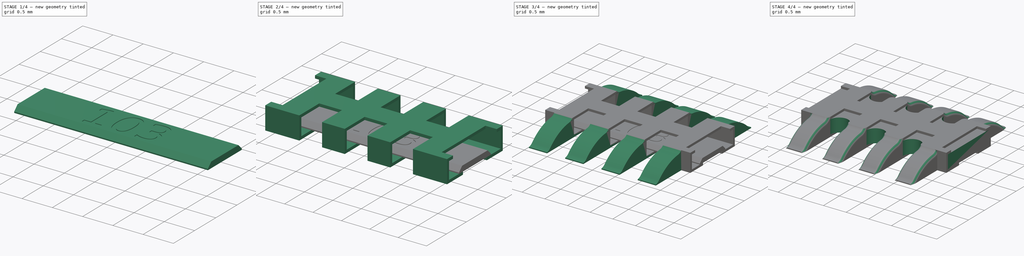
[diagram: build sequence overview — one tinted view per stage of 4, left to right]
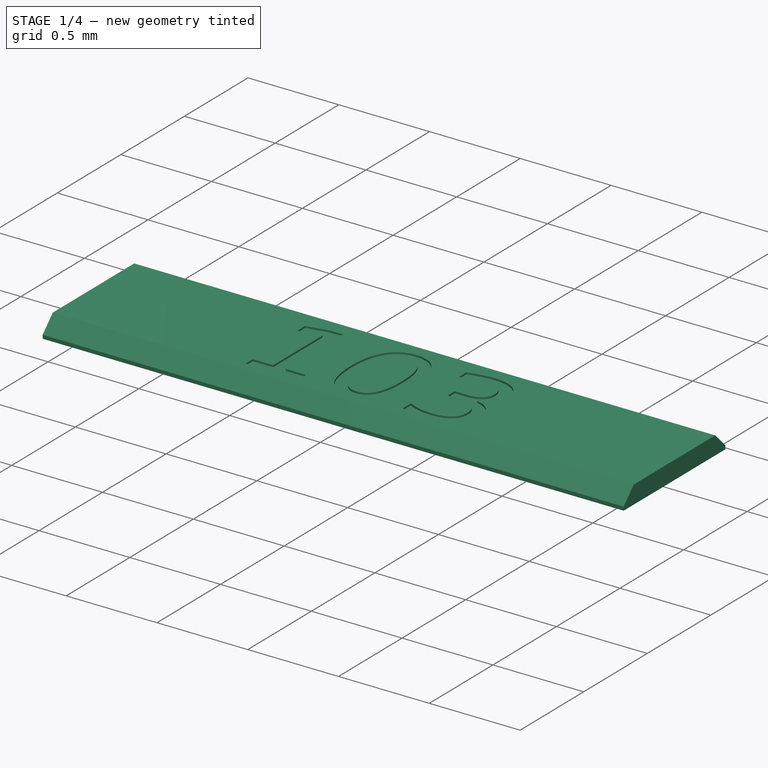
[diagram: stage 1 of 4 — iso view after this stage's code; geometry added in this stage tinted green]
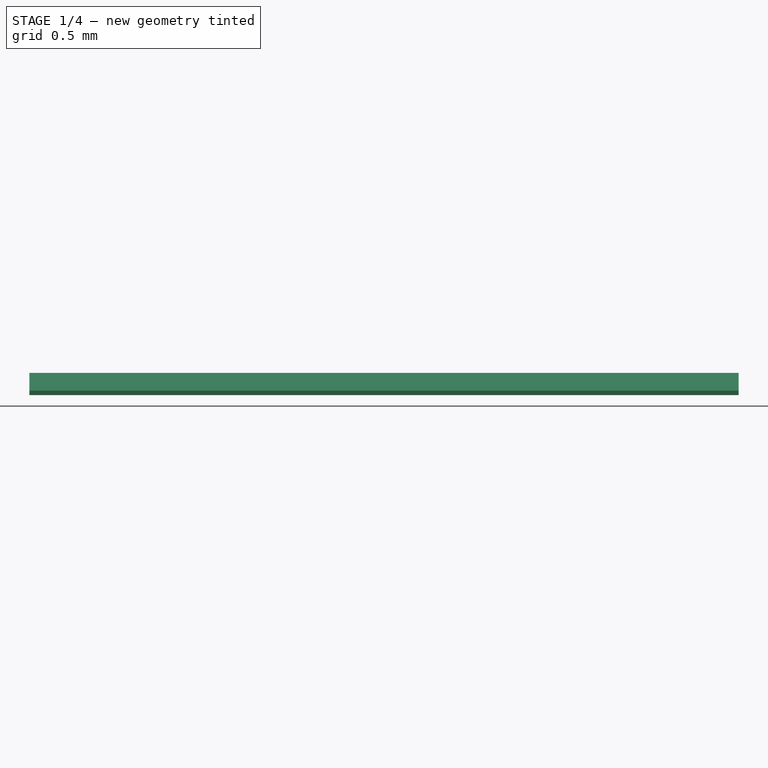
[diagram: stage 1 of 4 — front view after this stage's code; geometry added in this stage tinted green]
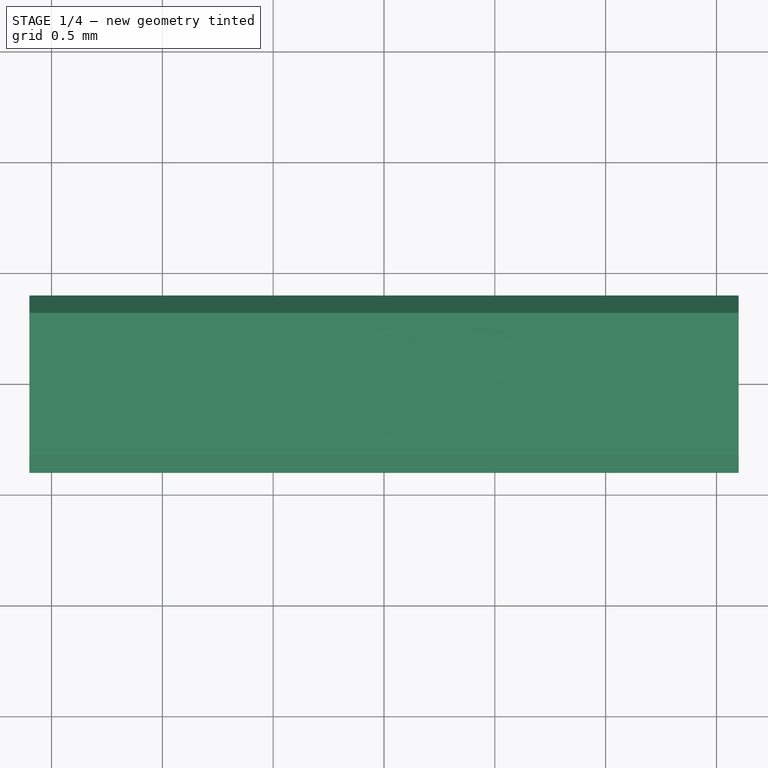
[diagram: stage 1 of 4 — top view after this stage's code; geometry added in this stage tinted green]
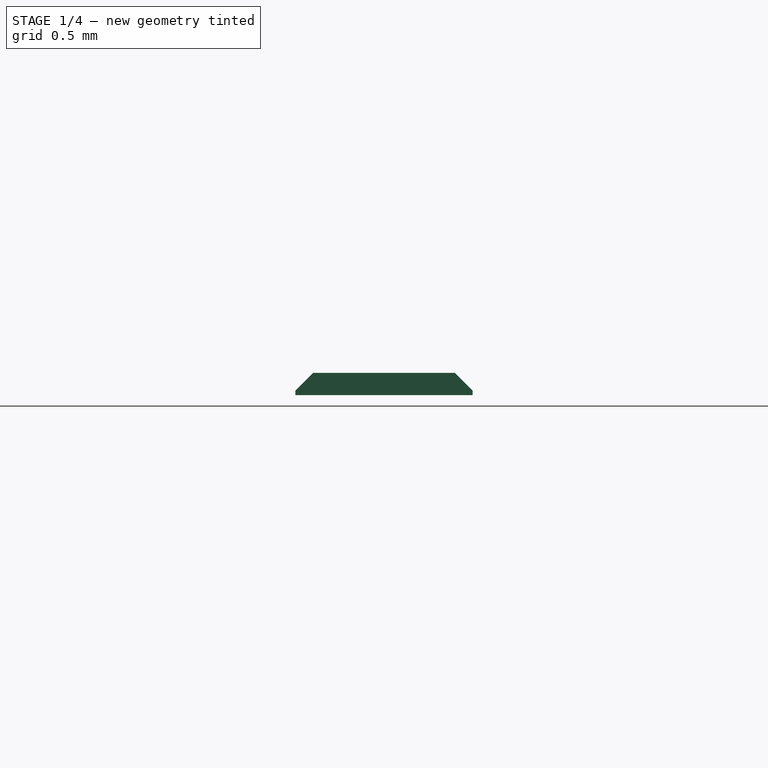
[diagram: stage 1 of 4 — right view after this stage's code; geometry added in this stage tinted green]
FCSTD DOCUMENT  (FreeCAD 0.18R4 (GitTag))
Label: Array chip resistor 103
Comment: https://designlibre.org/license-en/
License: Other
LicenseURL: https://designlibre.org/license-en/
objects: Sketcher::SketchObject×8, PartDesign::Pad×4, PartDesign::Pocket×4, PartDesign::Body×3, PartDesign::Plane×1, PartDesign::Mirrored×1, PartDesign::LinearPattern×1, PartDesign::MultiTransform×1, PartDesign::Fillet×1, PartDesign::Chamfer×1, App::Part×1
note: 33 computed .brp shape members not serialized (recipe doc carries the construction recipe); baked Part::Feature solids carry a one-line shape summary decoded from their .brp

FEATURE [PartDesign::Body] Body001
  Group = -> [Sketch002,Pad001,Sketch003,Pocket001,Sketch004,Pocket002,DatumPlane,Sketch005,Pad002,MultiTransform,Mirrored,LinearPattern,Fillet]
  Origin = -> Origin002
  Tip = -> Fillet
FEATURE [Sketcher::SketchObject] Sketch006
  MapMode = 5
  Support = -> [XY_Plane003]
  sketch-geometry (4):
    g0: LineSegment StartX=-1.6 StartY=0.4 StartZ=0 EndX=1.6 EndY=0.4 EndZ=0
    g1: LineSegment StartX=1.6 StartY=0.4 StartZ=0 EndX=1.6 EndY=-0.4 EndZ=0
    g2: LineSegment StartX=1.6 StartY=-0.4 StartZ=0 EndX=-1.6 EndY=-0.4 EndZ=0
    g3: LineSegment StartX=-1.6 StartY=-0.4 StartZ=0 EndX=-1.6 EndY=0.4 EndZ=0
  constraints (11):
    c: Coincident(g0,g1)
    c: Coincident(g1,g2)
    c: Coincident(g2,g3)
    c: Coincident(g3,g0)
    c: Horizontal(g0)
    c: Horizontal(g2)
    c: Vertical(g1)
    c: Vertical(g3)
    c: DistanceX(g0,g0) = 3.2
    c: DistanceY(g3,g3) = 0.8
    c: Symmetric(g2,g0,g-1)
FEATURE [PartDesign::Pad] Pad003
  Length = 0.1
  Length2 = 100
  Profile = -> Sketch006
  Refine = true
  Type = 0
FEATURE [PartDesign::Chamfer] Chamfer
  Base = -> Pad003 [Edge4,Edge10]
  BaseFeature = -> Pad003
  Size = 0.08
FEATURE [Sketcher::SketchObject] Sketch008
  Placement = pos=(0,0,0.25) rot=(0,0,1;0rad)
  sketch-geometry (56):
    g0: BSplineCurve PolesCount=2 KnotsCount=2 Degree=1 IsPeriodic=0
    g1: BSplineCurve PolesCount=2 KnotsCount=2 Degree=1 IsPeriodic=0
    g2: BSplineCurve PolesCount=2 KnotsCount=2 Degree=1 IsPeriodic=0
    g3: BSplineCurve PolesCount=2 KnotsCount=2 Degree=1 IsPeriodic=0
    g4: BSplineCurve PolesCount=2 KnotsCount=2 Degree=1 IsPeriodic=0
    g5: BSplineCurve PolesCount=2 KnotsCount=2 Degree=1 IsPeriodic=0
    g6: BSplineCurve PolesCount=2 KnotsCount=2 Degree=1 IsPeriodic=0
    g7: BSplineCurve PolesCount=2 KnotsCount=2 Degree=1 IsPeriodic=0
    g8: BSplineCurve PolesCount=2 KnotsCount=2 Degree=1 IsPeriodic=0
    g9: BSplineCurve PolesCount=2 KnotsCount=2 Degree=1 IsPeriodic=0
    g10: BSplineCurve PolesCount=2 KnotsCount=2 Degree=1 IsPeriodic=0
    g11: BSplineCurve PolesCount=3 KnotsCount=2 Degree=2 IsPeriodic=0
    g12: BSplineCurve PolesCount=3 KnotsCount=2 Degree=2 IsPeriodic=0
    g13: BSplineCurve PolesCount=3 KnotsCount=2 Degree=2 IsPeriodic=0
    g14: BSplineCurve PolesCount=3 KnotsCount=2 Degree=2 IsPeriodic=0
    g15: BSplineCurve PolesCount=3 KnotsCount=2 Degree=2 IsPeriodic=0
    g16: BSplineCurve PolesCount=3 KnotsCount=2 Degree=2 IsPeriodic=0
    g17: BSplineCurve PolesCount=3 KnotsCount=2 Degree=2 IsPeriodic=0
    g18: BSplineCurve PolesCount=3 KnotsCount=2 Degree=2 IsPeriodic=0
    g19: BSplineCurve PolesCount=3 KnotsCount=2 Degree=2 IsPeriodic=0
    g20: BSplineCurve PolesCount=3 KnotsCount=2 Degree=2 IsPeriodic=0
    g21: BSplineCurve PolesCount=3 KnotsCount=2 Degree=2 IsPeriodic=0
    g22: BSplineCurve PolesCount=3 KnotsCount=2 Degree=2 IsPeriodic=0
    g23: BSplineCurve PolesCount=3 KnotsCount=2 Degree=2 IsPeriodic=0
    g24: BSplineCurve PolesCount=3 KnotsCount=2 Degree=2 IsPeriodic=0
    g25: BSplineCurve PolesCount=3 KnotsCount=2 Degree=2 IsPeriodic=0
    g26: BSplineCurve PolesCount=3 KnotsCount=2 Degree=2 IsPeriodic=0
    g27: BSplineCurve PolesCount=3 KnotsCount=2 Degree=2 IsPeriodic=0
    g28: BSplineCurve PolesCount=3 KnotsCount=2 Degree=2 IsPeriodic=0
    g29: BSplineCurve PolesCount=3 KnotsCount=2 Degree=2 IsPeriodic=0
    g30: BSplineCurve PolesCount=3 KnotsCount=2 Degree=2 IsPeriodic=0
    g31: BSplineCurve PolesCount=3 KnotsCount=2 Degree=2 IsPeriodic=0
    g32: BSplineCurve PolesCount=3 KnotsCount=2 Degree=2 IsPeriodic=0
    g33: BSplineCurve PolesCount=2 KnotsCount=2 Degree=1 IsPeriodic=0
    g34: BSplineCurve PolesCount=3 KnotsCount=2 Degree=2 IsPeriodic=0
    g35: BSplineCurve PolesCount=3 KnotsCount=2 Degree=2 IsPeriodic=0
    g36: BSplineCurve PolesCount=3 KnotsCount=2 Degree=2 IsPeriodic=0
    g37: BSplineCurve PolesCount=3 KnotsCount=2 Degree=2 IsPeriodic=0
    g38: BSplineCurve PolesCount=3 KnotsCount=2 Degree=2 IsPeriodic=0
    g39: BSplineCurve PolesCount=3 KnotsCount=2 Degree=2 IsPeriodic=0
    g40: BSplineCurve PolesCount=2 KnotsCount=2 Degree=1 IsPeriodic=0
    g41: BSplineCurve PolesCount=2 KnotsCount=2 Degree=1 IsPeriodic=0
    g42: BSplineCurve PolesCount=2 KnotsCount=2 Degree=1 IsPeriodic=0
    g43: BSplineCurve PolesCount=3 KnotsCount=2 Degree=2 IsPeriodic=0
    g44: BSplineCurve PolesCount=3 KnotsCount=2 Degree=2 IsPeriodic=0
    g45: BSplineCurve PolesCount=3 KnotsCount=2 Degree=2 IsPeriodic=0
    g46: BSplineCurve PolesCount=3 KnotsCount=2 Degree=2 IsPeriodic=0
    g47: BSplineCurve PolesCount=3 KnotsCount=2 Degree=2 IsPeriodic=0
    g48: BSplineCurve PolesCount=3 KnotsCount=2 Degree=2 IsPeriodic=0
    g49: BSplineCurve PolesCount=2 KnotsCount=2 Degree=1 IsPeriodic=0
    g50: BSplineCurve PolesCount=3 KnotsCount=2 Degree=2 IsPeriodic=0
    g51: BSplineCurve PolesCount=3 KnotsCount=2 Degree=2 IsPeriodic=0
    g52: BSplineCurve PolesCount=3 KnotsCount=2 Degree=2 IsPeriodic=0
    g53: BSplineCurve PolesCount=3 KnotsCount=2 Degree=2 IsPeriodic=0
    g54: BSplineCurve PolesCount=3 KnotsCount=2 Degree=2 IsPeriodic=0
    g55: BSplineCurve PolesCount=3 KnotsCount=2 Degree=2 IsPeriodic=0
  constraints (56):
    c: Coincident(g0,g1)
    c: Coincident(g1,g2)
    c: Coincident(g2,g3)
    c: Coincident(g3,g4)
    c: Coincident(g4,g5)
    c: Coincident(g5,g6)
    c: Coincident(g6,g7)
    c: Coincident(g7,g8)
    c: Coincident(g8,g9)
    c: Coincident(g9,g10)
    c: Coincident(g10,g0)
    c: Coincident(g11,g12)
    c: Coincident(g12,g13)
    c: Coincident(g13,g14)
    c: Coincident(g14,g15)
    c: Coincident(g15,g16)
    c: Coincident(g16,g17)
    c: Coincident(g17,g18)
    c: Coincident(g18,g11)
    c: Coincident(g19,g20)
    c: Coincident(g20,g21)
    c: Coincident(g21,g22)
    c: Coincident(g22,g23)
    c: Coincident(g23,g24)
    c: Coincident(g24,g25)
    c: Coincident(g25,g26)
    c: Coincident(g26,g19)
    c: Coincident(g27,g28)
    c: Coincident(g28,g29)
    c: Coincident(g29,g30)
    c: Coincident(g30,g31)
    c: Coincident(g31,g32)
    c: Coincident(g32,g33)
    c: Coincident(g33,g34)
    c: Coincident(g34,g35)
    c: Coincident(g35,g36)
    c: Coincident(g36,g37)
    c: Coincident(g37,g38)
    c: Coincident(g38,g39)
    c: Coincident(g39,g40)
    c: Coincident(g40,g41)
    c: Coincident(g41,g42)
    c: Coincident(g42,g43)
    c: Coincident(g43,g44)
    c: Coincident(g44,g45)
    c: Coincident(g45,g46)
    c: Coincident(g46,g47)
    c: Coincident(g47,g48)
    c: Coincident(g48,g49)
    c: Coincident(g49,g50)
    c: Coincident(g50,g51)
    c: Coincident(g51,g52)
    c: Coincident(g52,g53)
    c: Coincident(g53,g54)
    c: Coincident(g54,g55)
    c: Coincident(g55,g27)
FEATURE [PartDesign::Pocket] Pocket003
  BaseFeature = -> Chamfer
  Length = 0.16
  Length2 = 100
  Profile = -> Sketch008
  Refine = true
  Type = 0
FEATURE [PartDesign::Body] Body002
  Group = -> [Sketch006,Pad003,Chamfer,Sketch008,Pocket003]
  Origin = -> Origin003
  Placement = pos=(0,0,0.3) rot=(0,0,1;0rad)
  Tip = -> Pocket003
FEATURE [App::Part] Part  label="Resistor array103"
  Group = -> [Body,Body001,Body002]
  Origin = -> Origin
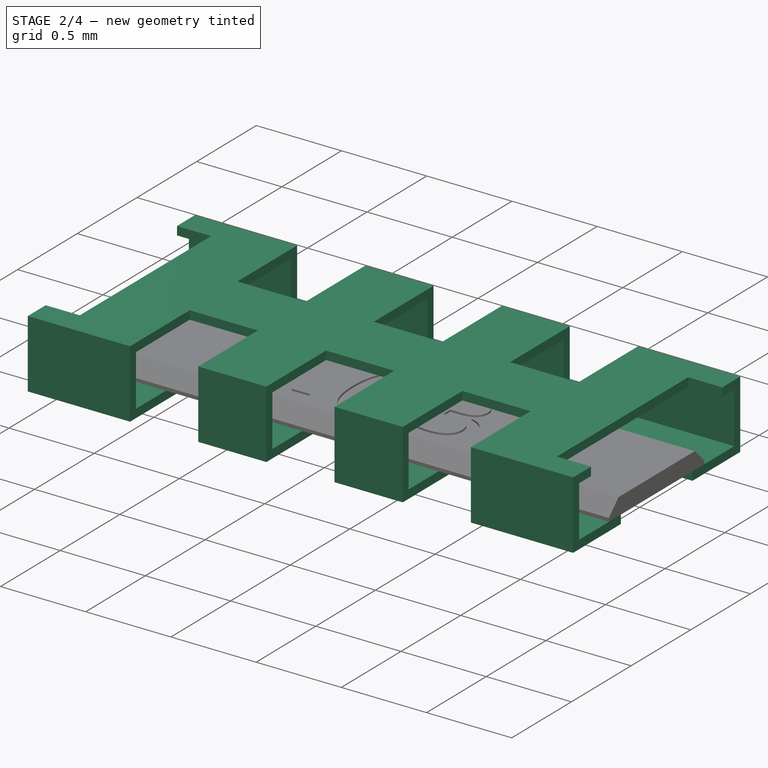
[diagram: stage 2 of 4 — iso view after this stage's code; geometry added in this stage tinted green]
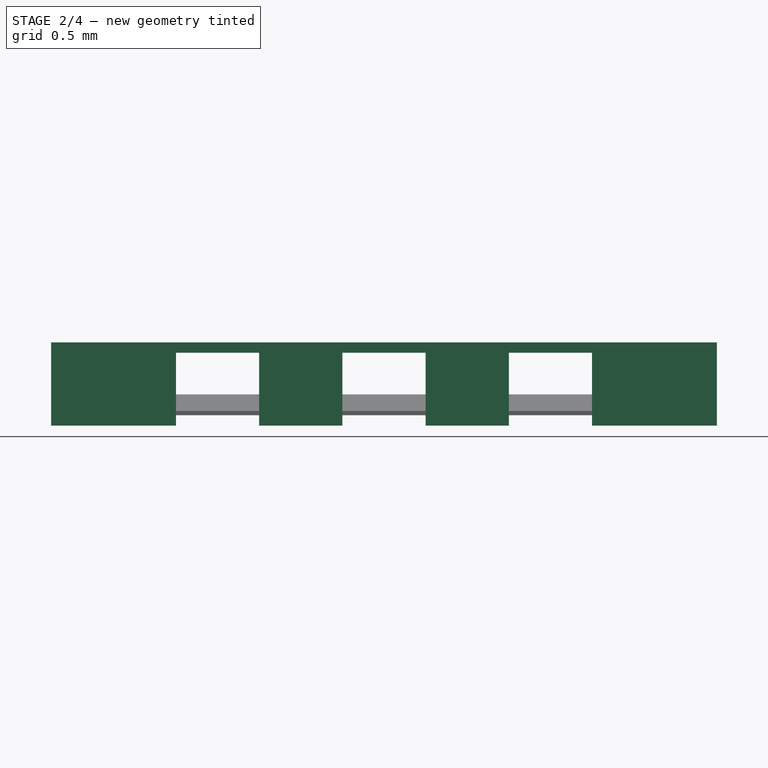
[diagram: stage 2 of 4 — front view after this stage's code; geometry added in this stage tinted green]
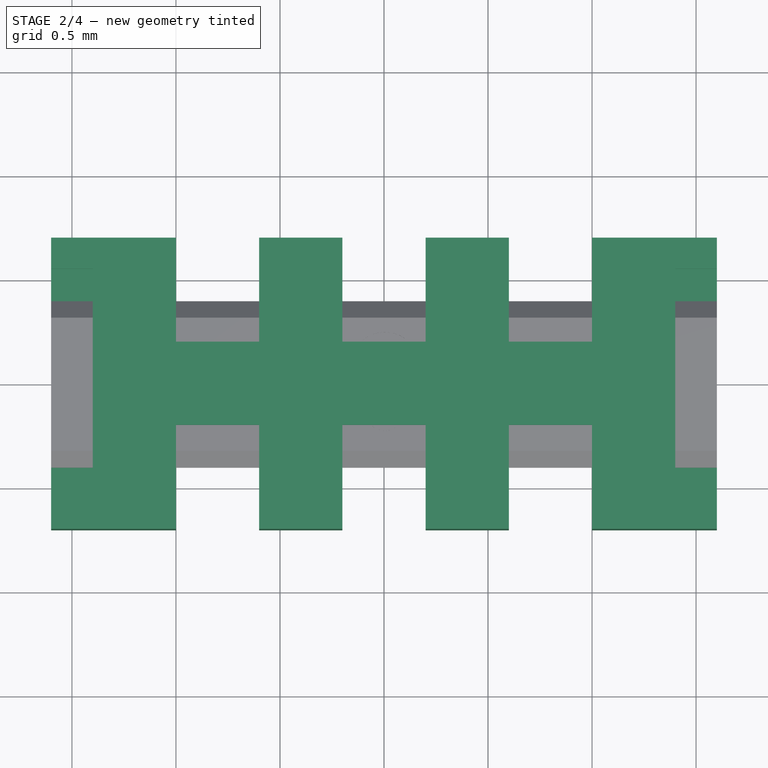
[diagram: stage 2 of 4 — top view after this stage's code; geometry added in this stage tinted green]
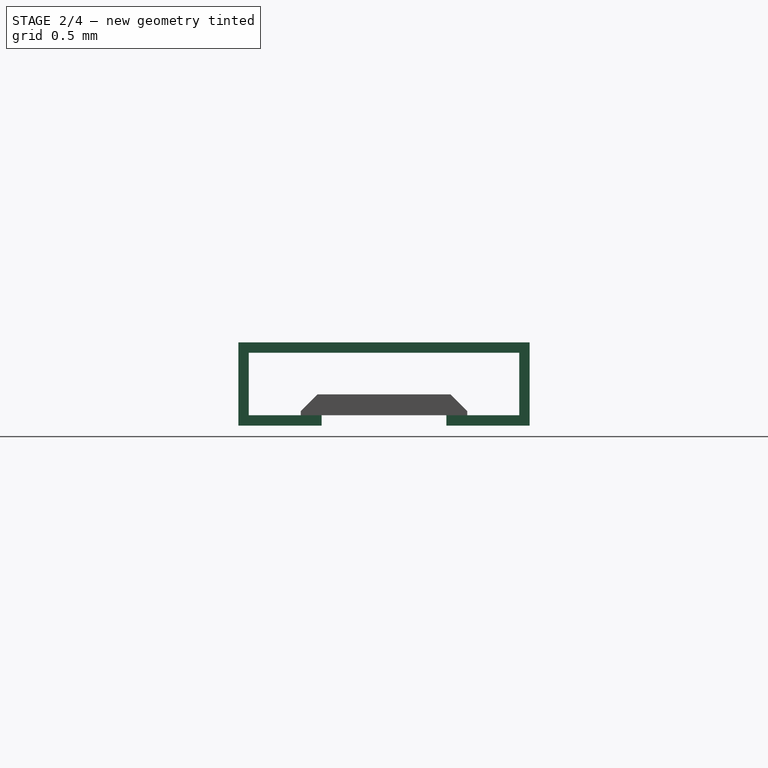
[diagram: stage 2 of 4 — right view after this stage's code; geometry added in this stage tinted green]
FEATURE [PartDesign::Body] Body
  Group = -> [Sketch,Pad,Sketch001,Pocket]
  Origin = -> Origin001
  Tip = -> Pocket
FEATURE [Sketcher::SketchObject] Sketch002
  MapMode = 5
  Placement = pos=(0,0,0) rot=(0.57735,0.57735,0.57735;2.0944rad)
  Support = -> [YZ_Plane002]
  sketch-geometry (14):
    g0: LineSegment StartX=-0.7 StartY=0.35 StartZ=0 EndX=0.7 EndY=0.35 EndZ=0
    g1: LineSegment StartX=0.7 StartY=0.35 StartZ=0 EndX=0.7 EndY=-0.05 EndZ=0
    g2: LineSegment StartX=0.7 StartY=-0.05 StartZ=0 EndX=0.3 EndY=-0.05 EndZ=0
    g3: LineSegment StartX=-0.7 StartY=-0.05 StartZ=0 EndX=-0.7 EndY=0.35 EndZ=0
    g4: LineSegment StartX=-0.65 StartY=0.3 StartZ=0 EndX=0.65 EndY=0.3 EndZ=0
    g5: LineSegment StartX=0.65 StartY=0.3 StartZ=0 EndX=0.65 EndY=0 EndZ=0
    g6: LineSegment StartX=0.65 StartY=0 StartZ=0 EndX=0.3 EndY=0 EndZ=0
    g7: LineSegment StartX=-0.65 StartY=0 StartZ=0 EndX=-0.65 EndY=0.3 EndZ=0
    g8: LineSegment StartX=-0.3 StartY=0 StartZ=0 EndX=-0.3 EndY=-0.05 EndZ=0
    g9: LineSegment StartX=0.3 StartY=0 StartZ=0 EndX=0.3 EndY=-0.05 EndZ=0
    g10: LineSegment StartX=-0.3 StartY=0 StartZ=0 EndX=-0.65 EndY=0 EndZ=0
    g11: LineSegment StartX=-0.3 StartY=-0.05 StartZ=0 EndX=-0.7 EndY=-0.05 EndZ=0
    g12: LineSegment [constr] StartX=-0.65 StartY=0 StartZ=0 EndX=-0.7 EndY=0 EndZ=0
    g13: LineSegment [constr] StartX=0 StartY=0.3 StartZ=0 EndX=0 EndY=0.35 EndZ=0
  constraints (38):
    c: Vertical(g1)
    c: Vertical(g3)
    c: Vertical(g5)
    c: Vertical(g9)
    c: Coincident(g6,g9)
    c: Coincident(g10,g8)
    c: Tangent(g6,g10)
    c: Coincident(g2,g9)
    c: Coincident(g11,g8)
    c: Tangent(g2,g11)
    c: Symmetric(g6,g8,g-2)
    c: Symmetric(g2,g8,g-2)
    c: PointOnObject(g12,g7)
    c: Horizontal(g12)
    c: PointOnObject(g13,g4)
    c: PointOnObject(g13,g0)
    c: Vertical(g13)
    c: PointOnObject(g13,g-2)
    c: Equal(g13,g8)
    c: Equal(g12,g8)
    c: DistanceX(g3,g8) = 0.4
    c: PointOnObject(g12,g-1)
    c: PointOnObject(g12,g3)
    c: DistanceX(g3,g1) = 1.4
    c: DistanceY(g11,g0) = 0.4
    c: Equal(g6,g10)
    c: DistanceY(g8,g8) = 0.05
    c: Symmetric(g4,g4,g-2)
    c: Symmetric(g0,g0,g-2)
    c: PointOnObject(g8,g-1)
    c: Coincident(g3,g0)
    c: Coincident(g4,g7)
    c: Coincident(g10,g7)
    c: Coincident(g3,g11)
    c: Coincident(g6,g5)
    c: Coincident(g1,g2)
    c: Coincident(g0,g1)
    c: Coincident(g5,g4)
FEATURE [PartDesign::Pad] Pad001
  Length = 3.2
  Length2 = 100
  Midplane = true
  Placement = pos=(0,0,0) rot=(0.57735,0.57735,0.57735;2.0944rad)
  Profile = -> Sketch002
  Refine = true
  Type = 0
FEATURE [Sketcher::SketchObject] Sketch003
  ExternalGeometry = -> [Pad001]
  MapMode = 5
  Support = -> [XY_Plane002]
  sketch-geometry (24):
    g0: LineSegment StartX=-1 StartY=-0.2 StartZ=0 EndX=-0.6 EndY=-0.2 EndZ=0
    g1: LineSegment StartX=-0.6 StartY=-0.2 StartZ=0 EndX=-0.6 EndY=-0.7 EndZ=0
    g2: LineSegment StartX=-0.6 StartY=-0.7 StartZ=0 EndX=-1 EndY=-0.7 EndZ=0
    g3: LineSegment StartX=-1 StartY=-0.7 StartZ=0 EndX=-1 EndY=-0.2 EndZ=0
    g4: LineSegment StartX=-0.2 StartY=-0.2 StartZ=0 EndX=0.2 EndY=-0.2 EndZ=0
    g5: LineSegment StartX=0.2 StartY=-0.2 StartZ=0 EndX=0.2 EndY=-0.7 EndZ=0
    g6: LineSegment StartX=0.2 StartY=-0.7 StartZ=0 EndX=-0.2 EndY=-0.7 EndZ=0
    g7: LineSegment StartX=-0.2 StartY=-0.7 StartZ=0 EndX=-0.2 EndY=-0.2 EndZ=0
    g8: LineSegment StartX=0.6 StartY=-0.2 StartZ=0 EndX=1 EndY=-0.2 EndZ=0
    g9: LineSegment StartX=1 StartY=-0.2 StartZ=0 EndX=1 EndY=-0.7 EndZ=0
    g10: LineSegment StartX=1 StartY=-0.7 StartZ=0 EndX=0.6 EndY=-0.7 EndZ=0
    g11: LineSegment StartX=0.6 StartY=-0.7 StartZ=0 EndX=0.6 EndY=-0.2 EndZ=0
    g12: LineSegment StartX=0.6 StartY=0.7 StartZ=0 EndX=1 EndY=0.7 EndZ=0
    g13: LineSegment StartX=1 StartY=0.7 StartZ=0 EndX=1 EndY=0.2 EndZ=0
    g14: LineSegment StartX=1 StartY=0.2 StartZ=0 EndX=0.6 EndY=0.2 EndZ=0
    g15: LineSegment StartX=0.6 StartY=0.2 StartZ=0 EndX=0.6 EndY=0.7 EndZ=0
    g16: LineSegment StartX=-0.2 StartY=0.7 StartZ=0 EndX=0.2 EndY=0.7 EndZ=0
    g17: LineSegment StartX=0.2 StartY=0.7 StartZ=0 EndX=0.2 EndY=0.2 EndZ=0
    g18: LineSegment StartX=0.2 StartY=0.2 StartZ=0 EndX=-0.2 EndY=0.2 EndZ=0
    g19: LineSegment StartX=-0.2 StartY=0.2 StartZ=0 EndX=-0.2 EndY=0.7 EndZ=0
    g20: LineSegment StartX=-1 StartY=0.7 StartZ=0 EndX=-0.6 EndY=0.7 EndZ=0
    g21: LineSegment StartX=-0.6 StartY=0.7 StartZ=0 EndX=-0.6 EndY=0.2 EndZ=0
    g22: LineSegment StartX=-0.6 StartY=0.2 StartZ=0 EndX=-1 EndY=0.2 EndZ=0
    g23: LineSegment StartX=-1 StartY=0.2 StartZ=0 EndX=-1 EndY=0.7 EndZ=0
  constraints (69):
    c: Coincident(g0,g1)
    c: Coincident(g1,g2)
    c: Coincident(g2,g3)
    c: Coincident(g3,g0)
    c: Horizontal(g0)
    c: Horizontal(g2)
    c: Vertical(g1)
    c: Vertical(g3)
    c: Coincident(g4,g5)
    c: Coincident(g5,g6)
    c: Coincident(g6,g7)
    c: Coincident(g7,g4)
    c: Horizontal(g4)
    c: Vertical(g5)
    c: Vertical(g7)
    c: Coincident(g8,g9)
    c: Coincident(g9,g10)
    c: Coincident(g10,g11)
    c: Coincident(g11,g8)
    c: Horizontal(g8)
    c: Horizontal(g10)
    c: Vertical(g9)
    c: Vertical(g11)
    c: Coincident(g12,g13)
    c: Coincident(g13,g14)
    c: Coincident(g14,g15)
    c: Coincident(g15,g12)
    c: Horizontal(g12)
    c: Horizontal(g14)
    c: Vertical(g13)
    c: Vertical(g15)
    c: Coincident(g16,g17)
    c: Coincident(g17,g18)
    c: Coincident(g18,g19)
    c: Coincident(g19,g16)
    c: Horizontal(g16)
    c: Horizontal(g18)
    c: Vertical(g17)
    c: Vertical(g19)
    c: Coincident(g20,g21)
    c: Coincident(g21,g22)
    c: Coincident(g22,g23)
    c: Coincident(g23,g20)
    c: Horizontal(g20)
    c: Horizontal(g22)
    c: Vertical(g21)
    c: Vertical(g23)
    c: Horizontal(g16,g20)
    c: Horizontal(g10,g5)
    c: Horizontal(g5,g1)
    c: Equal(g10,g6)
    c: Equal(g6,g2)
    c: Equal(g2,g20)
    c: Equal(g20,g16)
    c: Equal(g16,g12)
    c: Symmetric(g12,g20,g-2)
    c: Vertical(g12,g10)
    c: Vertical(g1,g20)
    c: Symmetric(g6,g5,g-2)
    c: Symmetric(g16,g5,g-1)
    c: DistanceX(g4,g4) = 0.4
    c: DistanceX(g0,g4) = 0.8
    c: Equal(g11,g7)
    c: Equal(g7,g3)
    c: Equal(g23,g19)
    c: Equal(g19,g15)
    c: Equal(g23,g3)
    c: PointOnObject(g2,g-3)
    c: DistanceY(g3,g3) = 0.5
FEATURE [PartDesign::Pocket] Pocket001
  BaseFeature = -> Pad001
  Length = 2
  Length2 = 100
  Midplane = true
  Placement = pos=(0,0,0) rot=(0.57735,0.57735,0.57735;2.0944rad)
  Profile = -> Sketch003
  Refine = true
  Type = 0
FEATURE [Sketcher::SketchObject] Sketch004
  ExternalGeometry = -> [Pocket001]
  MapMode = 5
  Support = -> [XY_Plane002]
  sketch-geometry (8):
    g0: LineSegment StartX=1.4 StartY=0.55 StartZ=0 EndX=1.6 EndY=0.55 EndZ=0
    g1: LineSegment StartX=1.6 StartY=0.55 StartZ=0 EndX=1.6 EndY=-0.55 EndZ=0
    g2: LineSegment StartX=1.6 StartY=-0.55 StartZ=0 EndX=1.4 EndY=-0.55 EndZ=0
    g3: LineSegment StartX=1.4 StartY=-0.55 StartZ=0 EndX=1.4 EndY=0.55 EndZ=0
    g4: LineSegment StartX=-1.6 StartY=0.55 StartZ=0 EndX=-1.4 EndY=0.55 EndZ=0
    g5: LineSegment StartX=-1.4 StartY=0.55 StartZ=0 EndX=-1.4 EndY=-0.55 EndZ=0
    g6: LineSegment StartX=-1.4 StartY=-0.55 StartZ=0 EndX=-1.6 EndY=-0.55 EndZ=0
    g7: LineSegment StartX=-1.6 StartY=-0.55 StartZ=0 EndX=-1.6 EndY=0.55 EndZ=0
  constraints (23):
    c: Coincident(g0,g1)
    c: Coincident(g1,g2)
    c: Coincident(g2,g3)
    c: Coincident(g3,g0)
    c: Horizontal(g0)
    c: Horizontal(g2)
    c: Vertical(g3)
    c: Coincident(g4,g5)
    c: Coincident(g5,g6)
    c: Coincident(g6,g7)
    c: Coincident(g7,g4)
    c: Horizontal(g4)
    c: Horizontal(g6)
    c: Vertical(g5)
    c: Vertical(g7)
    c: Equal(g5,g1)
    c: Horizontal(g4,g0)
    c: Symmetric(g0,g1,g-1)
    c: DistanceY(g3,g3) = 1.1
    c: DistanceX(g0,g0) = 0.2
    c: Equal(g0,g4)
    c: PointOnObject(g4,g-6)
    c: PointOnObject(g0,g-5)
FEATURE [PartDesign::Pocket] Pocket002
  BaseFeature = -> Pocket001
  Length = 1
  Length2 = 100
  Placement = pos=(0,0,0) rot=(0.57735,0.57735,0.57735;2.0944rad)
  Profile = -> Sketch004
  Refine = true
  Reversed = true
  Type = 0
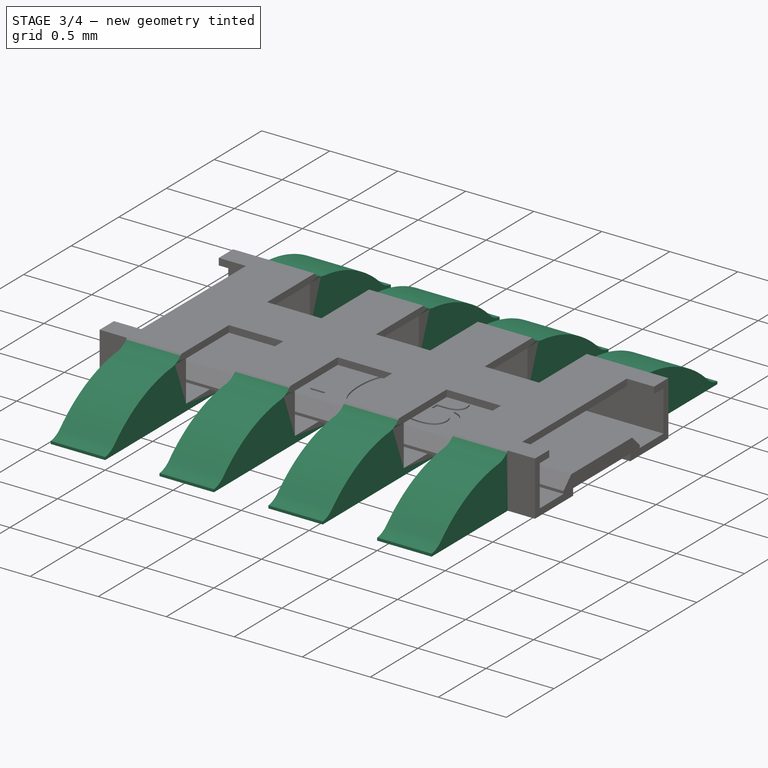
[diagram: stage 3 of 4 — iso view after this stage's code; geometry added in this stage tinted green]
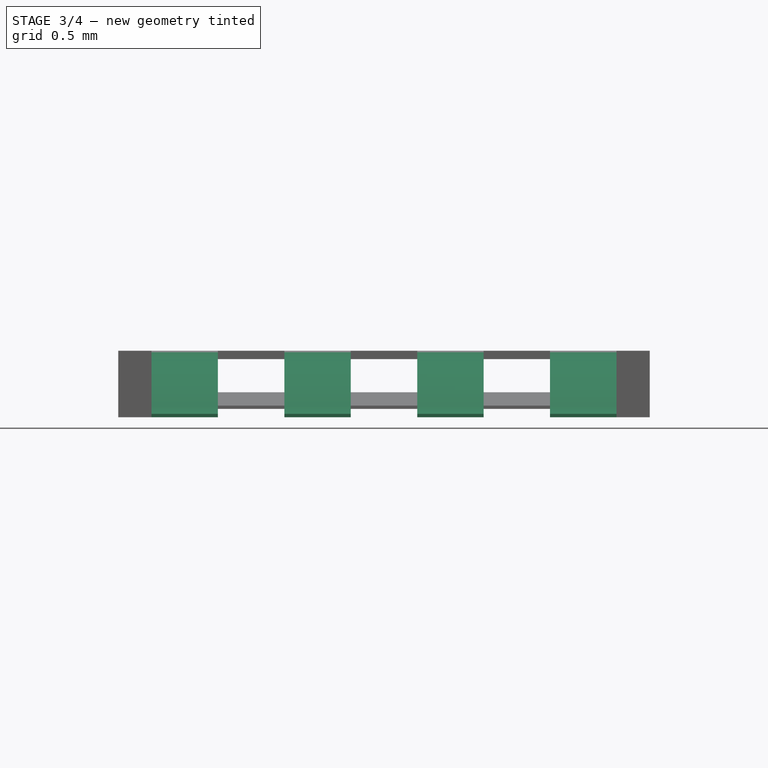
[diagram: stage 3 of 4 — front view after this stage's code; geometry added in this stage tinted green]
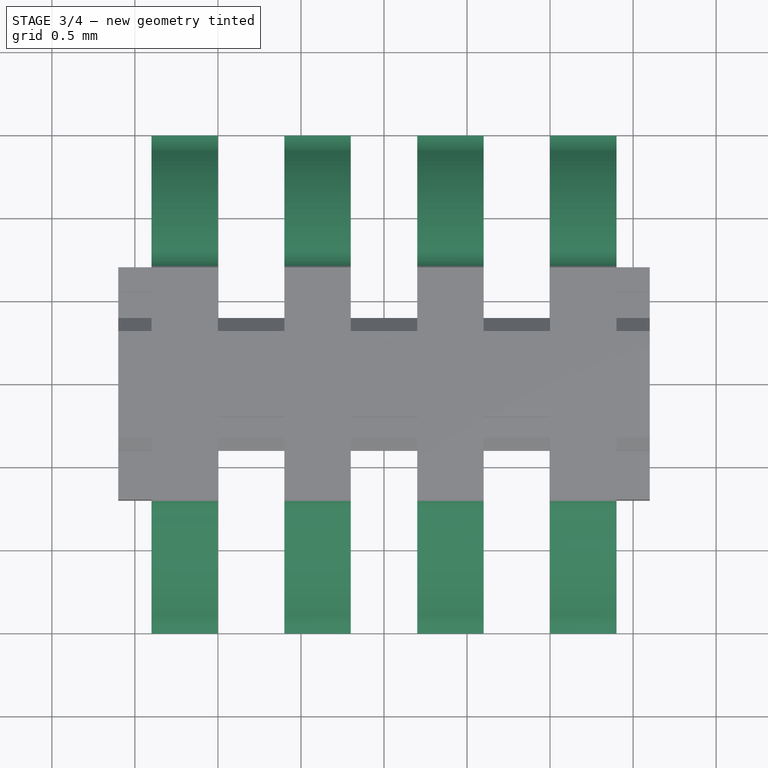
[diagram: stage 3 of 4 — top view after this stage's code; geometry added in this stage tinted green]
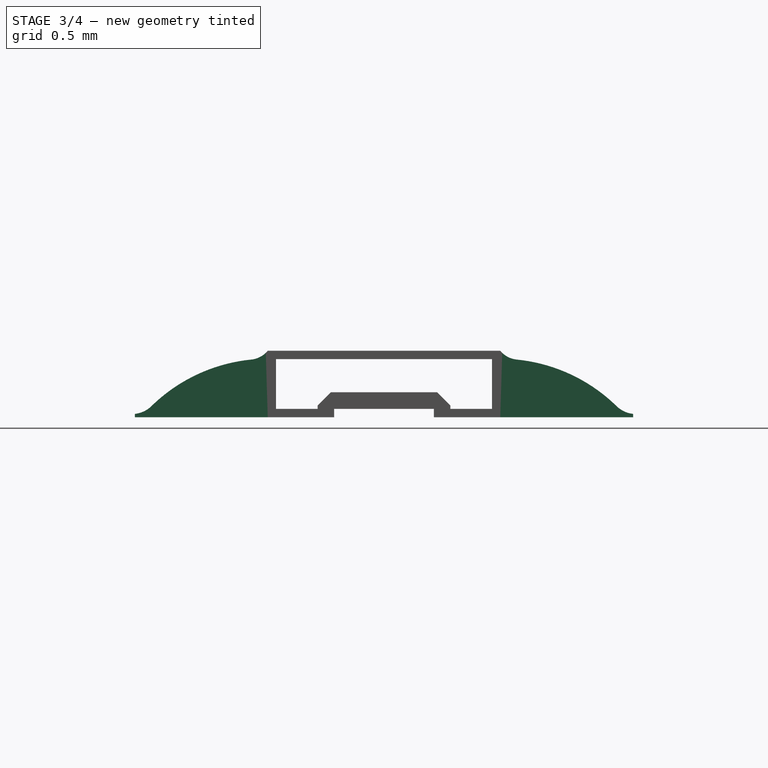
[diagram: stage 3 of 4 — right view after this stage's code; geometry added in this stage tinted green]
FEATURE [PartDesign::Plane] DatumPlane
  AttachmentOffset = pos=(0,0,1.2) rot=(0,0,1;0rad)
  Length = 24
  MapMode = 5
  Placement = pos=(1.2,-3e-16,3e-16) rot=(0.57735,0.57735,0.57735;2.0944rad)
  ResizeMode = 0
  Support = -> [YZ_Plane002]
  Width = 24
FEATURE [Sketcher::SketchObject] Sketch005
  ExternalGeometry = -> [Pocket002]
  MapMode = 5
  Placement = pos=(1.2,-3e-16,3e-16) rot=(0.57735,0.57735,0.57735;2.0944rad)
  Support = -> [DatumPlane]
  sketch-geometry (6):
    g0: LineSegment StartX=0.7 StartY=0.35 StartZ=0 EndX=0.7 EndY=-0.05 EndZ=0
    g1: LineSegment StartX=0.7 StartY=-0.05 StartZ=0 EndX=1.5 EndY=-0.05 EndZ=0
    g2: LineSegment StartX=1.5 StartY=-0.05 StartZ=0 EndX=1.5 EndY=-0.03 EndZ=0
    g3: ArcOfCircle CenterX=1.51872 CenterY=0.138967 CenterZ=0 NormalX=0 NormalY=0 NormalZ=1 AngleXU=0 Radius=0.17 StartAngle=3.93933 EndAngle=4.60207
    g4: ArcOfCircle CenterX=0.700198 CenterY=-0.7 CenterZ=0 NormalX=0 NormalY=0 NormalZ=1 AngleXU=0 Radius=1.00211 StartAngle=0.797735 EndAngle=1.47104
    g5: ArcOfCircle CenterX=0.814939 CenterY=0.44638 CenterZ=0 NormalX=0 NormalY=0 NormalZ=1 AngleXU=0 Radius=0.15 StartAngle=3.83939 EndAngle=4.61263
  constraints (17):
    c: Coincident(g0,g-3)
    c: Coincident(g0,g-3)
    c: Coincident(g0,g1)
    c: Horizontal(g1)
    c: Coincident(g1,g2)
    c: Vertical(g2)
    c: DistanceX(g-1,g1) = 1.5
    c: DistanceY(g2,g2) = 0.02
    c: Coincident(g3,g2)
    c: Coincident(g5,g0)
    c: Radius(g5) = 0.15
    c: Radius(g3) = 0.17
    c: Tangent(g4,g3) = 1.5708
    c: Tangent(g5,g4) = 1.5708
    c: DistanceY(g4,g-1) = 0.7
    c: DistanceX(g0,g4) = 0.1
    c: DistanceX(g3,g2) = 0.1
FEATURE [PartDesign::Pad] Pad002
  BaseFeature = -> Pocket002
  Length = 0.4
  Length2 = 100
  Midplane = true
  Placement = pos=(0,0,0) rot=(0.57735,0.57735,0.57735;2.0944rad)
  Profile = -> Sketch005
  Refine = true
  Type = 0
FEATURE [PartDesign::Mirrored] Mirrored
  MirrorPlane = -> XZ_Plane002
  Placement = pos=(0,0,0) rot=(0.57735,0.57735,0.57735;2.0944rad)
  Refine = true
FEATURE [PartDesign::LinearPattern] LinearPattern
  Direction = -> X_Axis002
  Length = 2.4
  Occurrences = 4
  Placement = pos=(0,0,0) rot=(0.57735,0.57735,0.57735;2.0944rad)
  Refine = true
  Reversed = true
FEATURE [PartDesign::MultiTransform] MultiTransform
  BaseFeature = -> Pad002
  Originals = -> [Pad002]
  Placement = pos=(0,0,0) rot=(0.57735,0.57735,0.57735;2.0944rad)
  Refine = true
  Transformations = -> [Mirrored,LinearPattern]
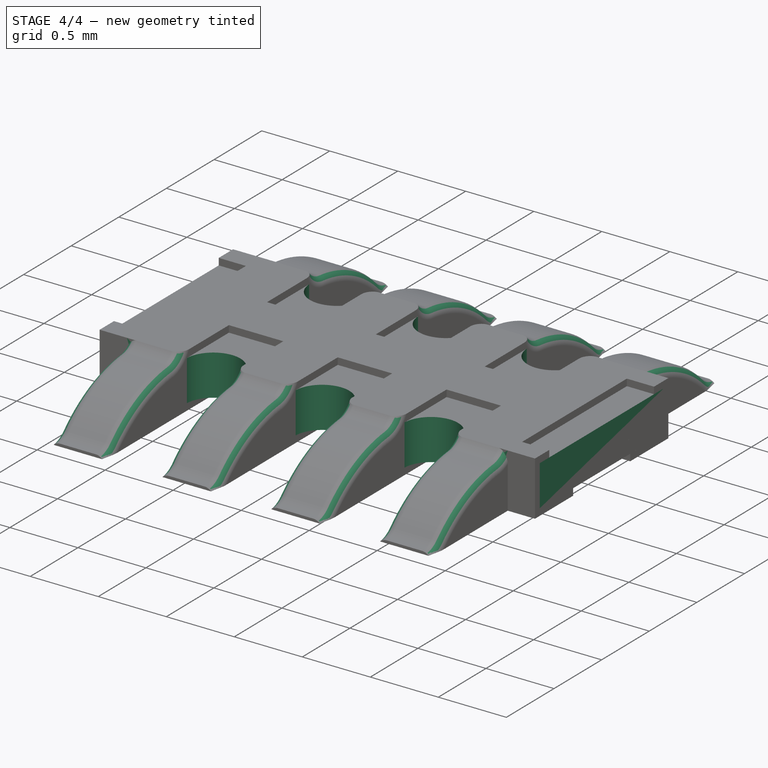
[diagram: stage 4 of 4 — iso view after this stage's code; geometry added in this stage tinted green]
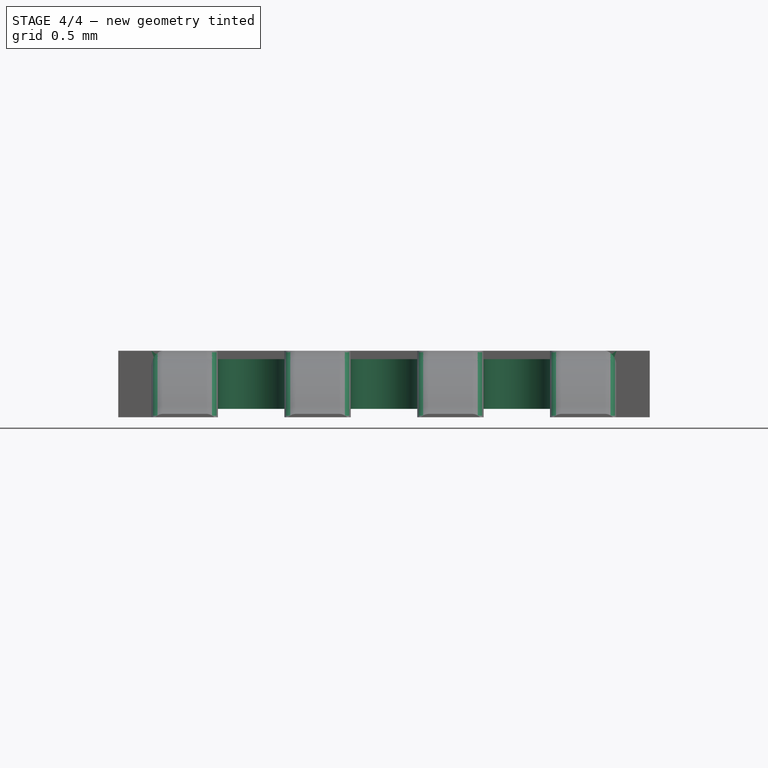
[diagram: stage 4 of 4 — front view after this stage's code; geometry added in this stage tinted green]
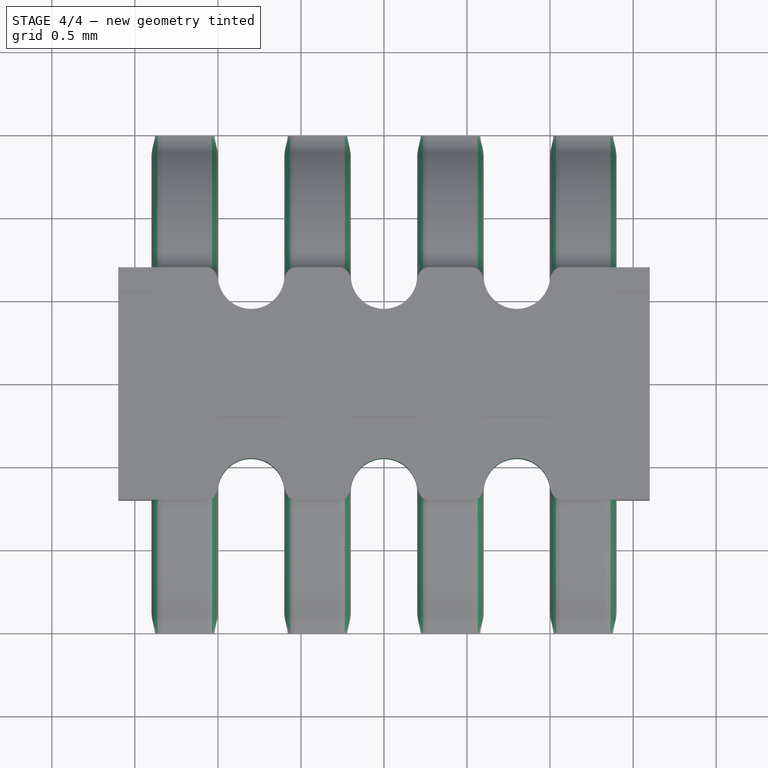
[diagram: stage 4 of 4 — top view after this stage's code; geometry added in this stage tinted green]
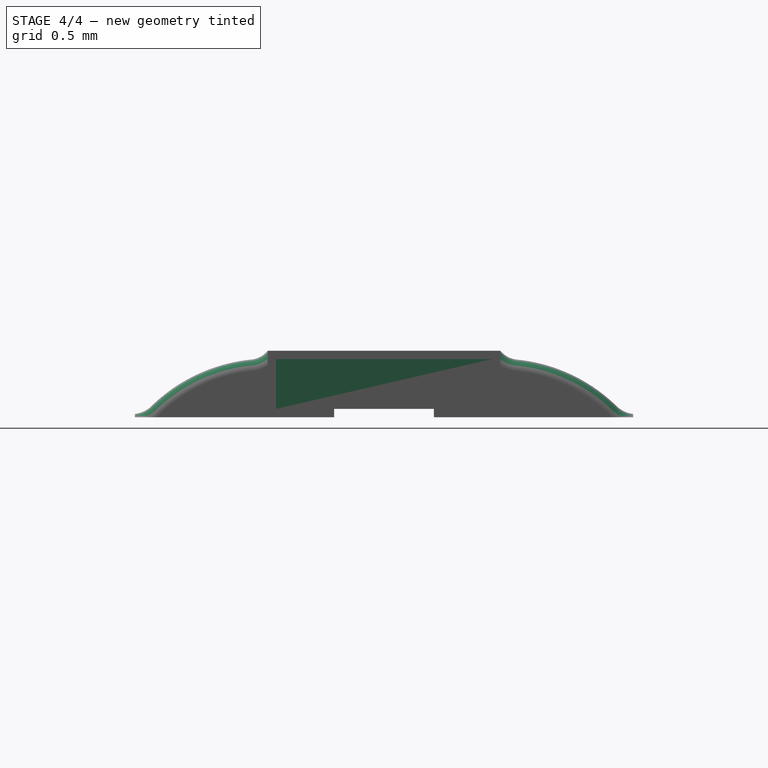
[diagram: stage 4 of 4 — right view after this stage's code; geometry added in this stage tinted green]
FEATURE [Sketcher::SketchObject] Sketch
  MapMode = 5
  Support = -> [XY_Plane001]
  sketch-geometry (4):
    g0: LineSegment StartX=-1.6 StartY=0.65 StartZ=0 EndX=1.6 EndY=0.65 EndZ=0
    g1: LineSegment StartX=1.6 StartY=0.65 StartZ=0 EndX=1.6 EndY=-0.65 EndZ=0
    g2: LineSegment StartX=1.6 StartY=-0.65 StartZ=0 EndX=-1.6 EndY=-0.65 EndZ=0
    g3: LineSegment StartX=-1.6 StartY=-0.65 StartZ=0 EndX=-1.6 EndY=0.65 EndZ=0
  constraints (11):
    c: Coincident(g0,g1)
    c: Coincident(g1,g2)
    c: Coincident(g2,g3)
    c: Coincident(g3,g0)
    c: Horizontal(g0)
    c: Horizontal(g2)
    c: Vertical(g1)
    c: Vertical(g3)
    c: DistanceX(g0,g0) = 3.2
    c: DistanceY(g1,g1) = 1.3
    c: Symmetric(g1,g0,g-1)
FEATURE [PartDesign::Pad] Pad
  Length = 0.3
  Length2 = 100
  Profile = -> Sketch
  Refine = true
  Type = 0
FEATURE [Sketcher::SketchObject] Sketch001
  ExternalGeometry = -> [Pad]
  MapMode = 5
  Support = -> [XY_Plane001]
  sketch-geometry (6):
    g0: Circle CenterX=0 CenterY=0.65 CenterZ=0 NormalX=0 NormalY=0 NormalZ=1 AngleXU=0 Radius=0.2
    g1: Circle CenterX=0.8 CenterY=0.65 CenterZ=0 NormalX=0 NormalY=0 NormalZ=1 AngleXU=0 Radius=0.2
    g2: Circle CenterX=-0.8 CenterY=0.65 CenterZ=0 NormalX=0 NormalY=0 NormalZ=1 AngleXU=0 Radius=0.2
    g3: Circle CenterX=-0.8 CenterY=-0.65 CenterZ=0 NormalX=0 NormalY=0 NormalZ=1 AngleXU=0 Radius=0.2
    g4: Circle CenterX=-3.299e-13 CenterY=-0.65 CenterZ=0 NormalX=0 NormalY=0 NormalZ=1 AngleXU=0 Radius=0.2
    g5: Circle CenterX=0.8 CenterY=-0.65 CenterZ=0 NormalX=0 NormalY=0 NormalZ=1 AngleXU=0 Radius=0.2
  constraints (14):
    c: PointOnObject(g0,g-2)
    c: Symmetric(g5,g1,g-1)
    c: Symmetric(g0,g4,g-1)
    c: Symmetric(g2,g3,g-1)
    c: Equal(g3,g4)
    c: Equal(g4,g5)
    c: Equal(g5,g1)
    c: Equal(g1,g0)
    c: Equal(g0,g2)
    c: PointOnObject(g4,g-4)
    c: Horizontal(g5,g4)
    c: Radius(g1) = 0.2
    c: DistanceX(g2,g0) = 0.8
    c: Symmetric(g1,g2,g0)
FEATURE [PartDesign::Pocket] Pocket
  BaseFeature = -> Pad
  Length = 1
  Length2 = 100
  Profile = -> Sketch001
  Refine = true
  Reversed = true
  Type = 0
FEATURE [PartDesign::Fillet] Fillet
  Base = -> MultiTransform [Edge206,Edge116,Edge241,Edge240,Edge238,Edge237,Edge235,Edge233,Edge182,Edge188,Edge252,Edge253,Edge249,Edge250,Edge243,Edge244]
  BaseFeature = -> MultiTransform
  Placement = pos=(0,0,0) rot=(0.57735,0.57735,0.57735;2.0944rad)
  Radius = 0.07
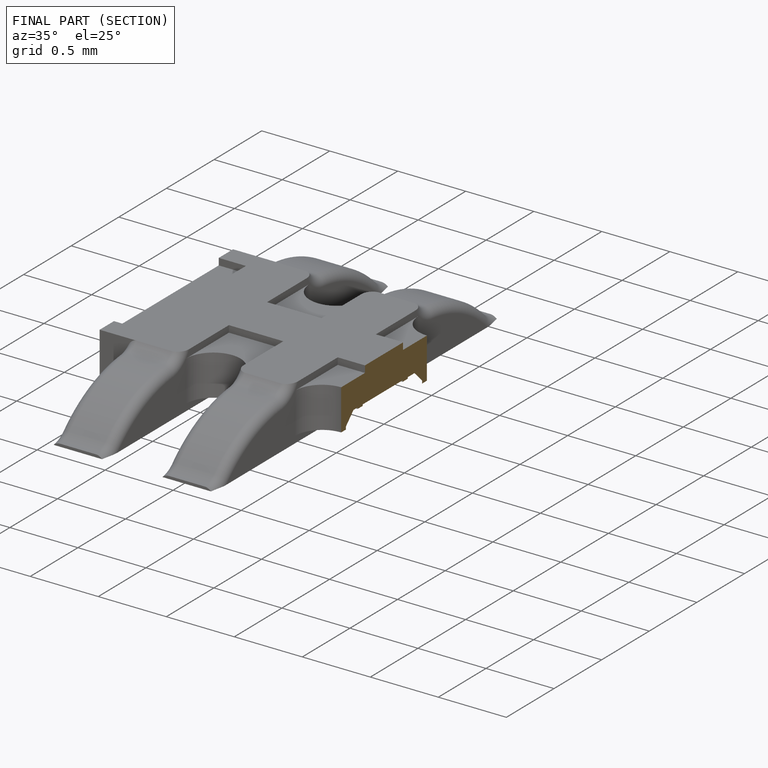
[diagram: finished part — half-section view (interior)]
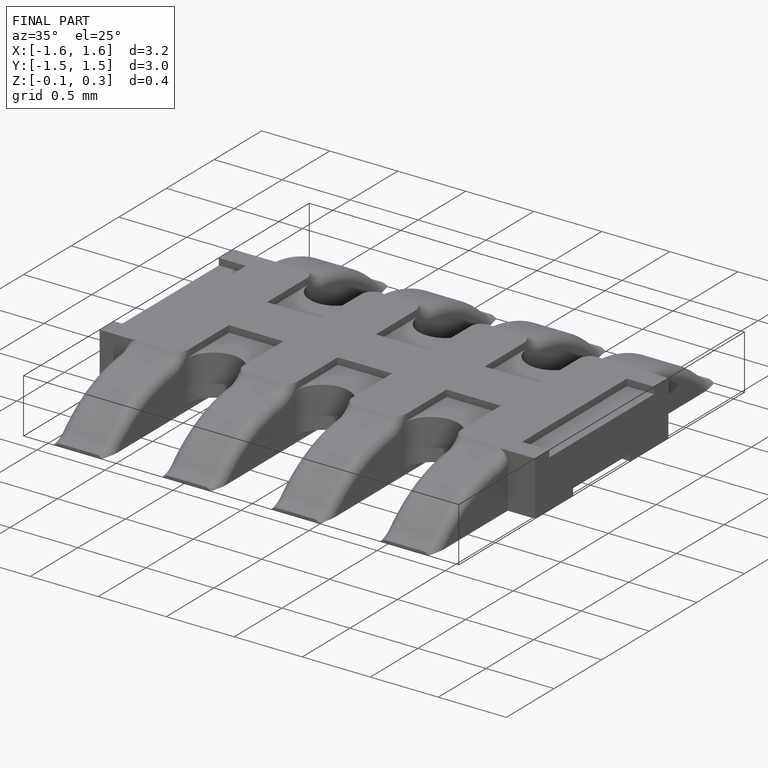
[diagram: finished part — iso view with bounding-box wireframe]
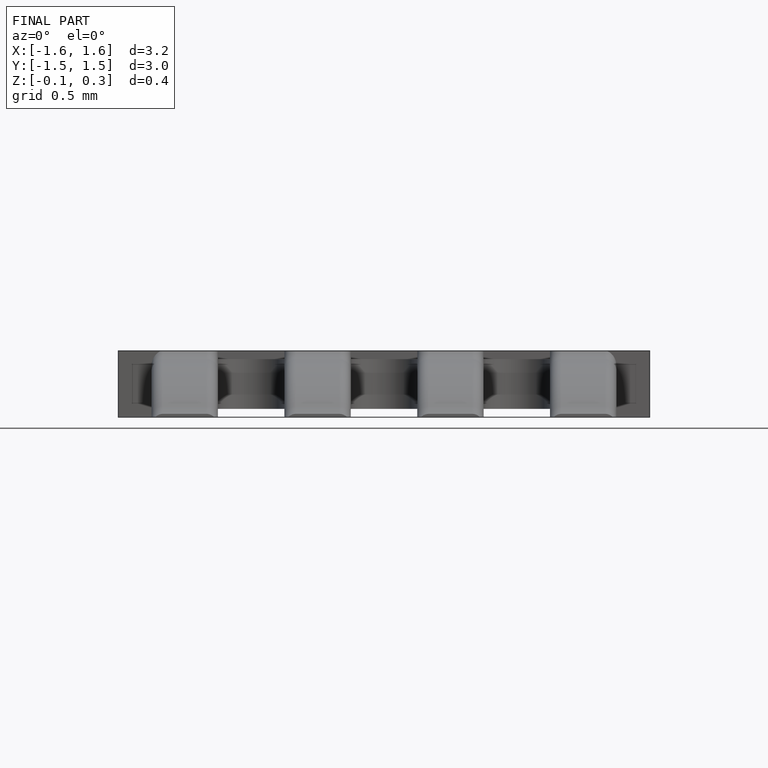
[diagram: finished part — front view with bounding-box wireframe]
